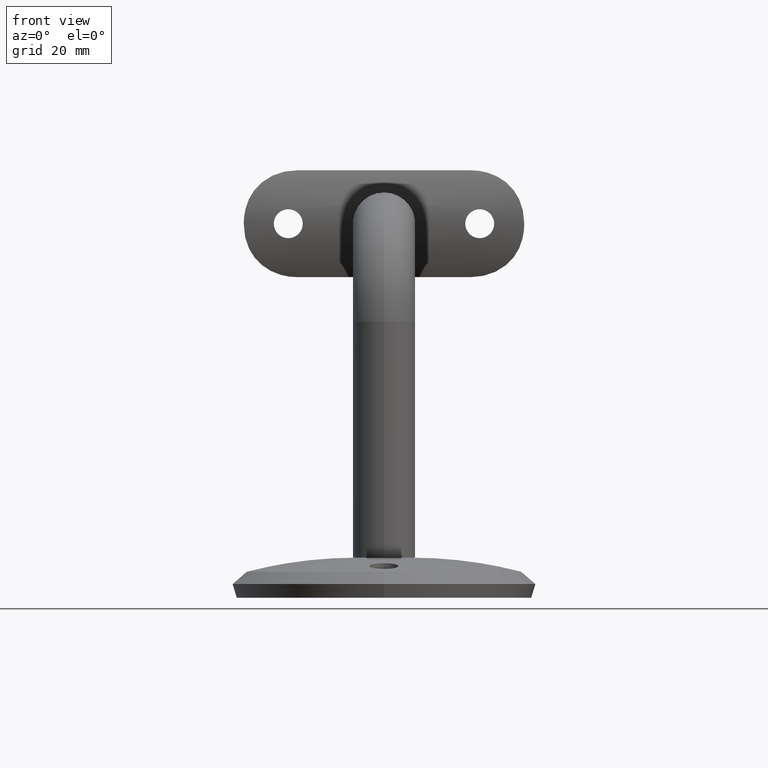
[diagram: clean part render]
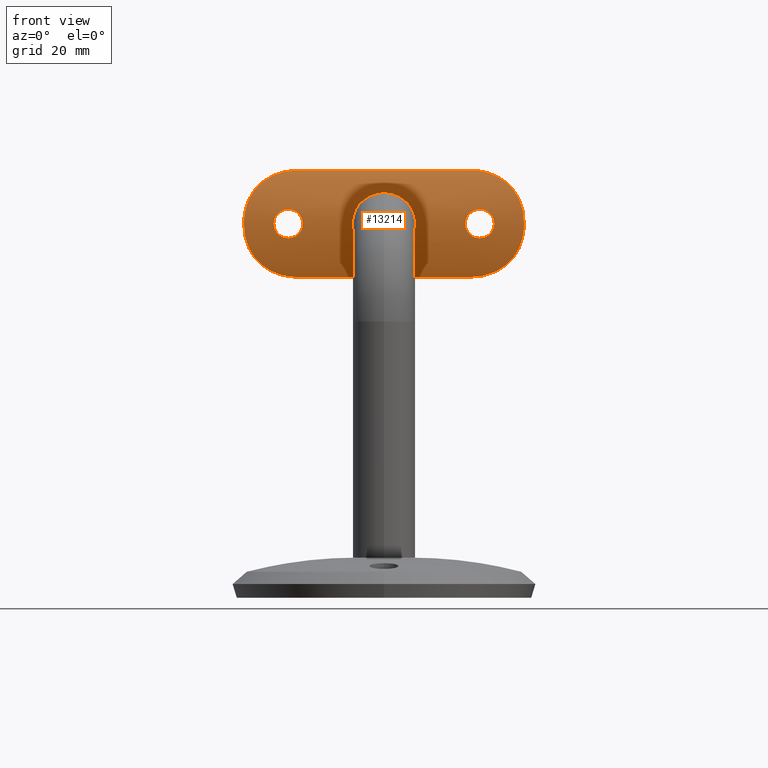
[diagram: same view with one face highlighted and labeled with its STEP entity id]
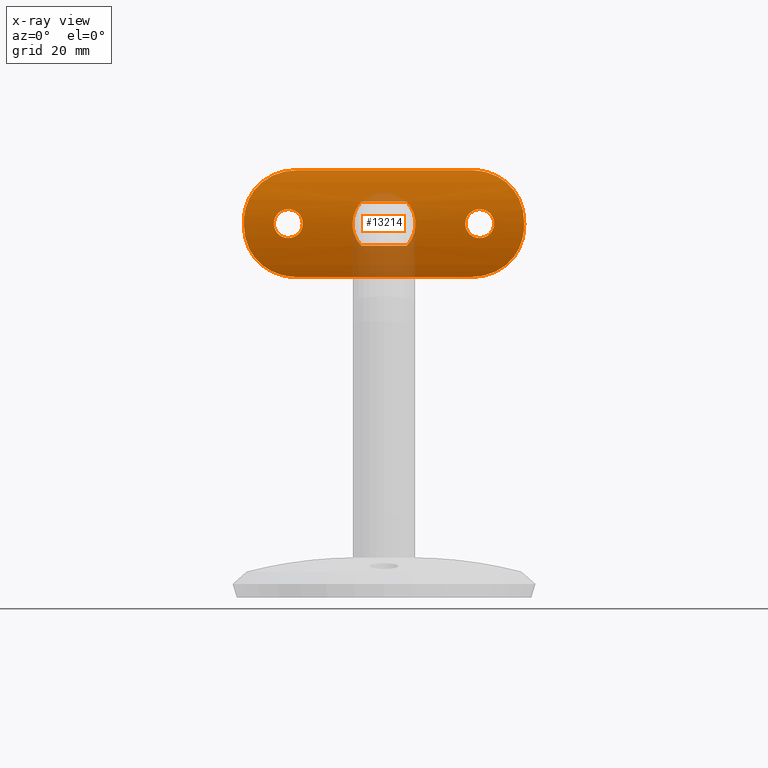
[diagram: x-ray of the same camera — body ghosted, the highlighted face saturated]
A machine part, front view. The second image highlights one B-rep face of the part: STEP entity #13214.
The next image is the same camera in x-ray: the body ghosted, the highlighted face saturated — about 10% of this face is hidden behind the body in this view.
In plain terms, the highlighted cylindrical surface (partial cylindrical patch) has radius 24.9 mm, axis along (-1, -0, -0).
Its self-contained STEP definition (entity closure, byte-faithful):
#1 = CARTESIAN_POINT ( 'NONE',  ( 4.636296391438902376, -3.266859031703641669, 5.396854037863801246 ) ) ;
#107 = CARTESIAN_POINT ( 'NONE',  ( 2.820318138835625543, -3.540050219768343442, -23.12909999587939325 ) ) ;
#114 = CARTESIAN_POINT ( 'NONE',  ( 2.256384447253243941, -3.598537256065256873, 6.735834185619443026 ) ) ;
#133 = CARTESIAN_POINT ( 'NONE',  ( 7.494247687663852631, -2.555515036344155888, 29.19387504587052717 ) ) ;
#176 = CARTESIAN_POINT ( 'NONE',  ( -9.659094786861150084, -1.751713507356720712, -26.96718664785969111 ) ) ;
#179 = CARTESIAN_POINT ( 'NONE',  ( 1.613102312184482745, -3.660295573399624303, -31.43708710865749367 ) ) ;
#180 = CARTESIAN_POINT ( 'NONE',  ( 3.980101584972723397E-16, -3.699999999999971312, -18.25000000000000000 ) ) ;
#182 = CARTESIAN_POINT ( 'NONE',  ( 11.92848342012841734, -0.6574244313320037891, 21.11270732962849905 ) ) ;
#197 = VERTEX_POINT ( 'NONE', #11163 ) ;
#205 = CARTESIAN_POINT ( 'NONE',  ( 0.000000000000000000, -3.699999999999994849, -24.75000000000000000 ) ) ;
#292 = CARTESIAN_POINT ( 'NONE',  ( -5.461449533831196135, -3.105332391508218493, -30.40257824629768280 ) ) ;
#307 = CARTESIAN_POINT ( 'NONE',  ( 8.913816326006870128, -2.051629287276899305, 27.87356755031019517 ) ) ;
#351 = CARTESIAN_POINT ( 'NONE',  ( -0.4232112014913631537, -3.697288328665047086, -18.27057670183493698 ) ) ;
#369 = EDGE_CURVE ( 'NONE', #5914, #5116, #16351, .T. ) ;
#437 = CARTESIAN_POINT ( 'NONE',  ( 0.8420467231033953448, -3.686626758976840001, 24.64616809647208839 ) ) ;
#440 = VERTEX_POINT ( 'NONE', #14640 ) ;
#496 = CARTESIAN_POINT ( 'NONE',  ( 1.981835697622209125, -3.621637099023646833, 24.08455317125302386 ) ) ;
#517 = CARTESIAN_POINT ( 'NONE',  ( -0.8429508884399495861, -3.686613020686982267, -18.35393637072016304 ) ) ;
#547 = CARTESIAN_POINT ( 'NONE',  ( 2.921291525389161592, -3.528178234305193506, 20.05987320755157910 ) ) ;
#567 = CARTESIAN_POINT ( 'NONE',  ( -2.919465209628760771, -3.528394687198957769, -20.05618315748919400 ) ) ;
#582 = EDGE_CURVE ( 'NONE', #5914, #1958, #16421, .T. ) ;
#594 = CARTESIAN_POINT ( 'NONE',  ( 2.582737021104773323, -3.565979664869300958, 23.48434641144994472 ) ) ;
#649 = CARTESIAN_POINT ( 'NONE',  ( 0.2122259090402193182, -3.699999999999970424, 18.25000000000000000 ) ) ;
#750 = CARTESIAN_POINT ( 'NONE',  ( -4.280658070604808074, -3.332362613302150667, -5.683006983233182652 ) ) ;
#776 = DIRECTION ( 'NONE',  ( -2.169367489357782465E-30, -8.474091755303465534E-33, -1.000000000000000000 ) ) ;
#834 = CARTESIAN_POINT ( 'NONE',  ( 11.99999999999998224, -0.6176534026920421638, 19.50000000000000000 ) ) ;
#885 = EDGE_LOOP ( 'NONE', ( #7508, #13137, #11078, #3647, #9639, #15859 ) ) ;
#916 = EDGE_CURVE ( 'NONE', #12010, #12425, #3341, .T. ) ;
#989 = B_SPLINE_CURVE_WITH_KNOTS ( 'NONE', 3,
 ( #4964, #10164, #13937, #2488, #5347, #6234, #15248, #11799, #13999, #10503, #176, #9206, #1142, #5290, #1540, #7994, #292, #4113, #3725, #2772, #11453, #10446, #3781, #7872 ),
 .UNSPECIFIED., .F., .F.,
 ( 4, 2, 2, 2, 2, 2, 2, 2, 2, 2, 2, 4 ),
 ( 3.476216610979979395E-18, 0.002405426272235862330, 0.003608139408353791978, 0.004810852544471722059, 0.007216278816707583955, 0.008418991952825518807, 0.009621705088943452791, 0.01202713136117931729, 0.01443255763341518352, 0.01563527076953311751, 0.01683798390565105149, 0.01924341017788691599 ),
 .UNSPECIFIED. ) ;
#1142 = CARTESIAN_POINT ( 'NONE',  ( -8.913816326006866575, -2.051629287276900193, -27.87356755031018452 ) ) ;
#1178 = CARTESIAN_POINT ( 'NONE',  ( -2.583679710951852559, -3.565877140410982804, 19.51704738153346952 ) ) ;
#1183 = CARTESIAN_POINT ( 'NONE',  ( -7.465386431756492414, -2.556697687672635944, 29.18815436188813095 ) ) ;
#1228 = CARTESIAN_POINT ( 'NONE',  ( -0.4232112014913322340, -3.697288328665049306, 18.27057670183493343 ) ) ;
#1303 = CARTESIAN_POINT ( 'NONE',  ( -12.00000000000001066, -0.6176534026920421638, 19.50000000000000000 ) ) ;
#1343 = CARTESIAN_POINT ( 'NONE',  ( -2.586209114153505073, -3.565612576627268382, 23.47967563857593731 ) ) ;
#1362 = CARTESIAN_POINT ( 'NONE',  ( -3.111721533360752190, -3.505646597793705688, 6.385896125220559938 ) ) ;
#1406 = CARTESIAN_POINT ( 'NONE',  ( -12.00000000000001066, -0.6176534026920421638, 19.50000000000000000 ) ) ;
#1470 = CARTESIAN_POINT ( 'NONE',  ( -4.282078825921497689, -3.332048076451970875, 5.681556398469049363 ) ) ;
#1520 = CARTESIAN_POINT ( 'NONE',  ( 3.229256190507495461, -3.489748422613191625, -21.92447517388455580 ) ) ;
#1540 = CARTESIAN_POINT ( 'NONE',  ( -7.494247687663852631, -2.555515036344158553, -29.19387504587052717 ) ) ;
#1573 = CARTESIAN_POINT ( 'NONE',  ( 0.4278139272984491925, -3.697198004263605231, -18.27127385403586146 ) ) ;
#1638 = DIRECTION ( 'NONE',  ( 2.169367489357782465E-30, 8.474091755303465534E-33, 1.000000000000000000 ) ) ;
#1666 = EDGE_CURVE ( 'NONE', #10897, #11133, #9762, .T. ) ;
#1735 = CARTESIAN_POINT ( 'NONE',  ( 3.980101584964834788E-16, -3.699999999999969535, 18.25000000000000000 ) ) ;
#1755 = CARTESIAN_POINT ( 'NONE',  ( -2.819524886703622890, -3.540136434465648740, -19.86972966992389544 ) ) ;
#1786 = CARTESIAN_POINT ( 'NONE',  ( 2.148852459624744693, -3.607560168819054169, 23.94740334920767921 ) ) ;
#1805 = CARTESIAN_POINT ( 'NONE',  ( -1.439045858798900790, -3.659153063118064875, -18.57827880898149431 ) ) ;
#1918 = CARTESIAN_POINT ( 'NONE',  ( 4.964876634922524623, -3.199999999999994404, -5.075431016179847710 ) ) ;
#1938 = CARTESIAN_POINT ( 'NONE',  ( 0.8447782825700470566, -3.686539391269251009, 18.35451960182217590 ) ) ;
#1958 = VERTEX_POINT ( 'NONE', #8658 ) ;
#2189 = CARTESIAN_POINT ( 'NONE',  ( 3.712115778710237013, -3.422492633365230574, -6.056552769143643822 ) ) ;
#2416 = CARTESIAN_POINT ( 'NONE',  ( 0.000000000000000000, -3.699999999999994849, 31.50000000000000000 ) ) ;
#2431 = CARTESIAN_POINT ( 'NONE',  ( -1.387778780781445676E-14, -3.700000000000009059, -31.50000000000000000 ) ) ;
#2469 = CARTESIAN_POINT ( 'NONE',  ( -3.249848216891571440, -3.487010483052731757, 21.28285409738497691 ) ) ;
#2478 = CARTESIAN_POINT ( 'NONE',  ( -8.074259893479320382, -2.356718930519072774, 28.69397140321249040 ) ) ;
#2488 = CARTESIAN_POINT ( 'NONE',  ( -11.71658496996890797, -0.7713009744624486075, -22.29178284133484311 ) ) ;
#2530 = CARTESIAN_POINT ( 'NONE',  ( -1.983184028264869392, -3.621535935841015963, 18.91638916660368963 ) ) ;
#2599 = CARTESIAN_POINT ( 'NONE',  ( 3.704398101367905038, -3.423671542610215557, 6.061365502583007547 ) ) ;
#2645 = CARTESIAN_POINT ( 'NONE',  ( 1.442102780649871185, -3.658985263850927705, -24.42031052337756947 ) ) ;
#2713 = CARTESIAN_POINT ( 'NONE',  ( 1.590617300758560670, -3.650178105100922554, 6.923377972446076889 ) ) ;
#2754 = CARTESIAN_POINT ( 'NONE',  ( 2.582737021104838604, -3.565979664869294297, -23.48434641144987012 ) ) ;
#2759 = VECTOR ( 'NONE', #776, 1000.000000000000000 ) ;
#2763 = CARTESIAN_POINT ( 'NONE',  ( 0.9113910570558707569, -3.687447184312848236, 7.056363803575782079 ) ) ;
#2765 = CARTESIAN_POINT ( 'NONE',  ( 0.000000000000000000, 21.20000000000002416, 31.49999999999969447 ) ) ;
#2772 = CARTESIAN_POINT ( 'NONE',  ( -3.198330643184873701, -3.496848918690158570, -31.15048156429586257 ) ) ;
#2775 = CARTESIAN_POINT ( 'NONE',  ( 6.156121038829930114, -2.936724213265689887, -30.05584034722584263 ) ) ;
#2789 = EDGE_CURVE ( 'NONE', #11133, #11445, #5149, .T. ) ;
#2826 = CARTESIAN_POINT ( 'NONE',  ( 12.00000000000000888, -0.6176534026920420528, -20.31329885972720817 ) ) ;
#2833 = CARTESIAN_POINT ( 'NONE',  ( 0.000000000000000000, -3.699999999999994849, 31.50000000000000000 ) ) ;
#2881 = CARTESIAN_POINT ( 'NONE',  ( -2.921499772798233252, -3.528153329608621380, -22.93967651103432459 ) ) ;
#2985 = CARTESIAN_POINT ( 'NONE',  ( 3.084324042621237272, -3.508372835214868868, -20.45364702191521644 ) ) ;
#3009 = ORIENTED_EDGE ( 'NONE', *, *, #2789, .T. ) ;
#3090 = B_SPLINE_CURVE_WITH_KNOTS ( 'NONE', 3,
 ( #10530, #5974, #8397, #14811, #12312, #3289, #5865, #14858, #12424, #7148, #8440, #750, #4629, #13617 ),
 .UNSPECIFIED., .F., .F.,
 ( 4, 2, 2, 2, 2, 2, 4 ),
 ( 0.005499627587204902746, 0.006872830783217639961, 0.007559432381224008568, 0.008246033979230377176, 0.008932635577236745783, 0.009619237175243112656, 0.01099244037125584814 ),
 .UNSPECIFIED. ) ;
#3108 = CARTESIAN_POINT ( 'NONE',  ( -3.084351378400128851, -3.508369120394314589, -22.54623417715408706 ) ) ;
#3168 = LINE ( 'NONE', #6050, #2759 ) ;
#3190 = CARTESIAN_POINT ( 'NONE',  ( 3.083248104138752055, -3.508505602359200726, 22.54922712429813814 ) ) ;
#3277 = B_SPLINE_CURVE_WITH_KNOTS ( 'NONE', 3,
 ( #9856, #6112, #15011, #2189, #12452, #3384, #14949, #13646, #7238, #11035, #8533, #13595 ),
 .UNSPECIFIED., .F., .F.,
 ( 4, 2, 2, 2, 2, 4 ),
 ( 1.226634733346703008E-18, 0.001374906896801228072, 0.002062360345201840264, 0.002749813793602452674, 0.004124720690403677927, 0.005499627587204902746 ),
 .UNSPECIFIED. ) ;
#3289 = CARTESIAN_POINT ( 'NONE',  ( -2.258265762077046102, -3.598364552420614704, -6.735198545714673024 ) ) ;
#3341 = B_SPLINE_CURVE_WITH_KNOTS ( 'NONE', 3,
 ( #10541, #14541, #15668, #437, #11882, #4324, #6889, #496, #1786, #13411, #594, #15989, #4526, #3190, #8442, #6996, #14760, #10847, #4427, #7039, #12209, #547, #16038, #4578, #10806, #15936, #13507, #8345, #5660, #7152, #1938, #5868, #649, #12151 ),
 .UNSPECIFIED., .F., .F.,
 ( 4, 2, 2, 2, 2, 2, 2, 2, 2, 2, 2, 2, 2, 2, 2, 2, 4 ),
 ( 0.000000000000000000, 0.0006357393811928030913, 0.001271478762385606616, 0.001907218143578410033, 0.002542957524771213666, 0.003178696905964016432, 0.003814436287156820066, 0.004450175668349622832, 0.005085915049542426465, 0.005721654430735229231, 0.006357393811928031997, 0.006993133193120835631, 0.007628872574313638397, 0.008264611955506442897, 0.008900351336699245663, 0.009536090717892050164, 0.01017183009908485466 ),
 .UNSPECIFIED. ) ;
#3384 = CARTESIAN_POINT ( 'NONE',  ( 3.110441035698505718, -3.505809087705372917, -6.386525233789827283 ) ) ;
#3533 = CARTESIAN_POINT ( 'NONE',  ( -4.964876634922524623, -3.199999999999994404, -5.075431016179843269 ) ) ;
#3647 = ORIENTED_EDGE ( 'NONE', *, *, #582, .F. ) ;
#3725 = CARTESIAN_POINT ( 'NONE',  ( -3.974160166930931659, -3.383932077341129219, -30.94271765376580774 ) ) ;
#3729 = CARTESIAN_POINT ( 'NONE',  ( 3.959980470126887031, -3.386209395477729700, -30.94697538539420734 ) ) ;
#3763 = CARTESIAN_POINT ( 'NONE',  ( -1.443090599177613731, -3.658917177029042289, 24.41972029213761530 ) ) ;
#3770 = CARTESIAN_POINT ( 'NONE',  ( -9.651496139240766325, -1.754897554413263228, 26.97737785628718754 ) ) ;
#3781 = CARTESIAN_POINT ( 'NONE',  ( -0.8129078222397787545, -3.700000000000009059, -31.50000000000000000 ) ) ;
#3821 = CARTESIAN_POINT ( 'NONE',  ( -3.145628655883432323, -3.500541877894284060, 20.65596617013613923 ) ) ;
#3843 = EDGE_CURVE ( 'NONE', #5116, #13299, #10641, .T. ) ;
#3951 = CARTESIAN_POINT ( 'NONE',  ( -2.264874394996045037, -3.600457940495219056, 6.744685369997289293 ) ) ;
#3999 = CARTESIAN_POINT ( 'NONE',  ( 3.100854879138932763, -3.507010798058747270, 6.391162737197334742 ) ) ;
#4113 = CARTESIAN_POINT ( 'NONE',  ( -4.352835420540754896, -3.319471389484637935, -30.82115928304210684 ) ) ;
#4117 = CARTESIAN_POINT ( 'NONE',  ( 10.86337671054184817, -1.207519595627818632, -24.95273175522527964 ) ) ;
#4264 = CARTESIAN_POINT ( 'NONE',  ( 2.146750992437098660, -3.607753381938928694, -19.05052876677883589 ) ) ;
#4290 = CARTESIAN_POINT ( 'NONE',  ( 8.362564540343095487, -2.255537001843989753, -28.43211677885593858 ) ) ;
#4324 = CARTESIAN_POINT ( 'NONE',  ( 1.442102780649961780, -3.658985263850918823, 24.42031052337751973 ) ) ;
#4346 = CARTESIAN_POINT ( 'NONE',  ( -2.821821168969953497, -3.539874073407938582, -23.12632054234545365 ) ) ;
#4425 = VERTEX_POINT ( 'NONE', #12617 ) ;
#4427 = CARTESIAN_POINT ( 'NONE',  ( 3.228883512651747001, -3.489796806255358153, 21.07337049124385686 ) ) ;
#4526 = CARTESIAN_POINT ( 'NONE',  ( 2.921124191385680913, -3.528196485631387436, 22.94025341122300077 ) ) ;
#4562 = DIRECTION ( 'NONE',  ( -2.169367489357782465E-30, -8.474091755303465534E-33, -1.000000000000000000 ) ) ;
#4578 = CARTESIAN_POINT ( 'NONE',  ( 2.584365611345395664, -3.565804050768294431, 19.51799543005816417 ) ) ;
#4629 = CARTESIAN_POINT ( 'NONE',  ( -4.636500095948909106, -3.266817582205205461, -5.396654770499319298 ) ) ;
#4675 = B_SPLINE_CURVE_WITH_KNOTS ( 'NONE', 3,
 ( #2431, #11351, #179, #12998, #11409, #3729, #6292, #10450, #2775, #11744, #8711, #9325, #4290, #7997, #9210, #10630, #15694, #6864, #4117, #15810, #13100, #5407, #2826, #9377 ),
 .UNSPECIFIED., .F., .F.,
 ( 4, 2, 2, 2, 2, 2, 2, 2, 2, 2, 2, 4 ),
 ( 1.077696660413038744E-18, 0.002406420888280979414, 0.003609631332421468688, 0.004812841776561957961, 0.007219262664842938243, 0.008422473108983431420, 0.009625683553123926331, 0.01082889399726441951, 0.01203210444140491268, 0.01443852532968590424, 0.01684494621796689406, 0.01925136710624788736 ),
 .UNSPECIFIED. ) ;
#4681 = EDGE_CURVE ( 'NONE', #15535, #440, #15705, .T. ) ;
#4914 = EDGE_CURVE ( 'NONE', #12425, #12010, #14302, .T. ) ;
#4964 = CARTESIAN_POINT ( 'NONE',  ( -11.99999999999998224, -0.6176534026920560416, -19.50000000000000355 ) ) ;
#4997 = CARTESIAN_POINT ( 'NONE',  ( -3.082957173500506354, -3.508544189864446050, 20.44963851398086518 ) ) ;
#5002 = CARTESIAN_POINT ( 'NONE',  ( -3.185422266228735477, -3.498506488204460751, 31.15346151089249105 ) ) ;
#5050 = CARTESIAN_POINT ( 'NONE',  ( -2.150086282832535556, -3.607452471063076427, 23.94631227737812651 ) ) ;
#5104 = CARTESIAN_POINT ( 'NONE',  ( -2.821821168969941951, -3.539874073407943023, 23.12632054234545720 ) ) ;
#5116 = VERTEX_POINT ( 'NONE', #12485 ) ;
#5149 = LINE ( 'NONE', #6258, #9358 ) ;
#5241 = ORIENTED_EDGE ( 'NONE', *, *, #15047, .T. ) ;
#5247 = CARTESIAN_POINT ( 'NONE',  ( 11.28972141810763929, -0.9940804612480595992, 23.83666306912913768 ) ) ;
#5290 = CARTESIAN_POINT ( 'NONE',  ( -8.096501375618348817, -2.354069913744669229, -28.70234642595245234 ) ) ;
#5328 = CARTESIAN_POINT ( 'NONE',  ( 3.083248104138704981, -3.508505602359203834, -22.54922712429826959 ) ) ;
#5340 = CARTESIAN_POINT ( 'NONE',  ( 2.471878148250398866, -3.577911789568007261, 6.659715758080829495 ) ) ;
#5347 = CARTESIAN_POINT ( 'NONE',  ( -11.62834804759313556, -0.8183103573893919513, -22.68144421163976432 ) ) ;
#5407 = CARTESIAN_POINT ( 'NONE',  ( 11.92848259060794014, -0.6574309275929257623, -21.11410712426871328 ) ) ;
#5453 = CARTESIAN_POINT ( 'NONE',  ( -0.8474384682299959115, -3.686461918805227000, -24.64487241752244984 ) ) ;
#5521 = CARTESIAN_POINT ( 'NONE',  ( -2.449262616600729636, -3.579703020064631147, -23.64672481166024554 ) ) ;
#5629 = CARTESIAN_POINT ( 'NONE',  ( -2.586209114153444677, -3.565612576627271491, -23.47967563857602613 ) ) ;
#5660 = CARTESIAN_POINT ( 'NONE',  ( 1.440859961367720654, -3.659057170068559905, 18.57908025749506820 ) ) ;
#5789 = EDGE_CURVE ( 'NONE', #7842, #10897, #15967, .T. ) ;
#5865 = CARTESIAN_POINT ( 'NONE',  ( -2.473601289892182198, -3.577738523372020030, -6.659071046019722218 ) ) ;
#5868 = CARTESIAN_POINT ( 'NONE',  ( 0.4278139272984166075, -3.697198004263604787, 18.27127385403586146 ) ) ;
#5914 = VERTEX_POINT ( 'NONE', #834 ) ;
#5974 = CARTESIAN_POINT ( 'NONE',  ( -0.4586185383962270712, -3.699999999999969980, -7.100000000000004086 ) ) ;
#6050 = CARTESIAN_POINT ( 'NONE',  ( -11.99999999999999645, -0.6176534026920421638, 31.50000000000000000 ) ) ;
#6068 = B_SPLINE_CURVE_WITH_KNOTS ( 'NONE', 3,
 ( #205, #7687, #7849, #9191, #10319, #2645, #11612, #8974, #6607, #6503, #2754, #107, #11717, #5328, #9075, #1520, #9458, #13075, #15726, #8080, #2985, #14439, #11947, #14547, #8197, #4264, #10762, #10713, #10657, #15788, #13250, #1573, #15672, #10547 ),
 .UNSPECIFIED., .F., .F.,
 ( 4, 2, 2, 2, 2, 2, 2, 2, 2, 2, 2, 2, 2, 2, 2, 2, 4 ),
 ( 8.612190294667283965E-19, 0.0006357393811927677463, 0.001271478762385534625, 0.001907218143578301179, 0.002542957524771068383, 0.003178696905963835154, 0.003814436287156601491, 0.004450175668349368695, 0.005085915049542135899, 0.005721654430734902236, 0.006357393811927669440, 0.006993133193120436644, 0.007628872574313202114, 0.008264611955505969318, 0.008900351336698737389, 0.009536090717891505461, 0.01017183009908427180 ),
 .UNSPECIFIED. ) ;
#6112 = CARTESIAN_POINT ( 'NONE',  ( 4.636128183256396973, -3.266893258460820348, -5.397018582091170913 ) ) ;
#6234 = CARTESIAN_POINT ( 'NONE',  ( -11.41507547166431635, -0.9296299401163019560, -23.45386468381838796 ) ) ;
#6258 = CARTESIAN_POINT ( 'NONE',  ( 4.964876634922524623, -3.199999999999994404, 31.49999999999999289 ) ) ;
#6274 = CARTESIAN_POINT ( 'NONE',  ( -1.047902027870929897, -3.678710684825339694, 18.41629945653652101 ) ) ;
#6281 = CARTESIAN_POINT ( 'NONE',  ( -3.959980470126880370, -3.386209395477729256, 30.94697538539420734 ) ) ;
#6292 = CARTESIAN_POINT ( 'NONE',  ( 4.343585444218851954, -3.321130880666876894, -30.82433790244265381 ) ) ;
#6334 = CARTESIAN_POINT ( 'NONE',  ( -2.449262616600864195, -3.579703020064620045, 23.64672481166009987 ) ) ;
#6338 = CARTESIAN_POINT ( 'NONE',  ( -10.51395294504078848, -1.376102020913408053, 25.65610659191668930 ) ) ;
#6455 = CARTESIAN_POINT ( 'NONE',  ( -2.901699150288104878, -3.531270379057796838, 6.484038188702959005 ) ) ;
#6503 = CARTESIAN_POINT ( 'NONE',  ( 2.448290363575797990, -3.579799892622920421, -23.64784178713661333 ) ) ;
#6533 = CARTESIAN_POINT ( 'NONE',  ( 11.62834804759315155, -0.8183103573893861782, 22.68144421163976787 ) ) ;
#6585 = CARTESIAN_POINT ( 'NONE',  ( 11.99999999999998579, -0.6176534026920420528, 20.31330633155848275 ) ) ;
#6607 = CARTESIAN_POINT ( 'NONE',  ( 2.148852459624673639, -3.607560168819061719, -23.94740334920774671 ) ) ;
#6637 = CARTESIAN_POINT ( 'NONE',  ( 10.86543210599209885, -1.206527040695207997, 24.94850832163289667 ) ) ;
#6697 = CARTESIAN_POINT ( 'NONE',  ( 11.41507547166432524, -0.9296299401162954057, 23.45386468381837375 ) ) ;
#6856 = CARTESIAN_POINT ( 'NONE',  ( -1.628227239447606056, -3.647344750715974637, -18.67919517067760538 ) ) ;
#6862 = EDGE_CURVE ( 'NONE', #14705, #1958, #4675, .T. ) ;
#6864 = CARTESIAN_POINT ( 'NONE',  ( 10.51395294504077960, -1.376102020913409163, -25.65610659191669995 ) ) ;
#6889 = CARTESIAN_POINT ( 'NONE',  ( 1.628699641122160147, -3.647307268334033736, 24.32044771382351556 ) ) ;
#6968 = CARTESIAN_POINT ( 'NONE',  ( -1.631627379172323922, -3.647122264414902837, -24.31886029199421273 ) ) ;
#6996 = CARTESIAN_POINT ( 'NONE',  ( 3.229256190507529212, -3.489748422613189849, 21.92447517388427869 ) ) ;
#7039 = CARTESIAN_POINT ( 'NONE',  ( 3.145785620554937712, -3.500522016790684532, 20.65635652937654498 ) ) ;
#7100 = CARTESIAN_POINT ( 'NONE',  ( -4.964876634922537946, -3.199999999999994404, 5.075431016179841492 ) ) ;
#7148 = CARTESIAN_POINT ( 'NONE',  ( -3.506564222652059026, -3.452700319270824547, -6.177880390645239750 ) ) ;
#7152 = CARTESIAN_POINT ( 'NONE',  ( 1.047393586680330779, -3.678741276189808840, 18.41603887102827741 ) ) ;
#7155 = EDGE_CURVE ( 'NONE', #11445, #4425, #3277, .T. ) ;
#7164 = ORIENTED_EDGE ( 'NONE', *, *, #4681, .F. ) ;
#7238 = CARTESIAN_POINT ( 'NONE',  ( 1.825648068936826629, -3.637070978649130204, -6.876581450474894552 ) ) ;
#7435 = DIRECTION ( 'NONE',  ( -2.169367489357782465E-30, -8.474091755303465534E-33, -1.000000000000000000 ) ) ;
#7508 = ORIENTED_EDGE ( 'NONE', *, *, #10421, .T. ) ;
#7517 = FACE_BOUND ( 'NONE', #14575, .T. ) ;
#7572 = CARTESIAN_POINT ( 'NONE',  ( -3.084351378400044030, -3.508369120394319474, 22.54623417715431799 ) ) ;
#7578 = CARTESIAN_POINT ( 'NONE',  ( -6.156121038829923897, -2.936724213265691663, 30.05584034722584263 ) ) ;
#7585 = EDGE_CURVE ( 'NONE', #440, #15535, #6068, .T. ) ;
#7634 = CARTESIAN_POINT ( 'NONE',  ( -10.86337671054185172, -1.207519595627814191, 24.95273175522526898 ) ) ;
#7642 = CARTESIAN_POINT ( 'NONE',  ( -1.827830933494216437, -3.636904553612686275, 6.875981570658941777 ) ) ;
#7681 = CARTESIAN_POINT ( 'NONE',  ( -3.229201240444566245, -3.489754643205440487, 21.92386930829948000 ) ) ;
#7687 = CARTESIAN_POINT ( 'NONE',  ( 0.2149818604170241343, -3.700000000000009059, -24.75000000000001066 ) ) ;
#7699 = CARTESIAN_POINT ( 'NONE',  ( 3.505576954194433270, -3.452841900582014123, 6.178445786202252599 ) ) ;
#7755 = CARTESIAN_POINT ( 'NONE',  ( 4.280216917462786874, -3.332443931792659075, 5.683362678621757702 ) ) ;
#7757 = DIRECTION ( 'NONE',  ( -2.169367489357782465E-30, -8.474091755303465534E-33, -1.000000000000000000 ) ) ;
#7777 = CARTESIAN_POINT ( 'NONE',  ( 10.51663599609497624, -1.374778303228652909, 25.65040292986302362 ) ) ;
#7802 = CARTESIAN_POINT ( 'NONE',  ( -11.42861343239433225, -0.9245719279827769865, 23.47385143687692022 ) ) ;
#7842 = VERTEX_POINT ( 'NONE', #3533 ) ;
#7849 = CARTESIAN_POINT ( 'NONE',  ( 0.4263252820595022086, -3.697218336159324270, -24.72887954699843505 ) ) ;
#7872 = CARTESIAN_POINT ( 'NONE',  ( -1.387778780781445676E-14, -3.700000000000009059, -31.50000000000000000 ) ) ;
#7943 = CARTESIAN_POINT ( 'NONE',  ( 8.096501375618352370, -2.354069913744669229, 28.70234642595245589 ) ) ;
#7994 = CARTESIAN_POINT ( 'NONE',  ( -6.164181800682560386, -2.934852511962080968, -30.05211743802890112 ) ) ;
#7997 = CARTESIAN_POINT ( 'NONE',  ( 8.908510052025789605, -2.053669611251289773, -27.87937364185426503 ) ) ;
#8002 = CARTESIAN_POINT ( 'NONE',  ( 4.352835420540755784, -3.319471389484635715, 30.82115928304210328 ) ) ;
#8080 = CARTESIAN_POINT ( 'NONE',  ( 3.145785620555029194, -3.500522016790673430, -20.65635652937688604 ) ) ;
#8096 = CARTESIAN_POINT ( 'NONE',  ( 0.000000000000000000, -3.699999999999994849, -24.75000000000000000 ) ) ;
#8110 = CARTESIAN_POINT ( 'NONE',  ( 11.99999999999999645, -0.6176534026914454190, 31.50000000000000000 ) ) ;
#8159 = CARTESIAN_POINT ( 'NONE',  ( -1.986735340249689452, -3.621252494889344309, -24.08090370569096450 ) ) ;
#8197 = CARTESIAN_POINT ( 'NONE',  ( 2.449870133762373392, -3.579655042198047976, -19.35370424367776465 ) ) ;
#8252 = CARTESIAN_POINT ( 'NONE',  ( -0.2121748390877163659, -3.699999999999969980, -18.25000000000000000 ) ) ;
#8345 = CARTESIAN_POINT ( 'NONE',  ( 1.630997491512056197, -3.647151806679350905, 18.68093415040934957 ) ) ;
#8397 = CARTESIAN_POINT ( 'NONE',  ( -0.9142097955992272151, -3.687338515416161311, -7.055981841108256880 ) ) ;
#8440 = CARTESIAN_POINT ( 'NONE',  ( -3.705248419110434899, -3.423542522952972789, -6.060840257332934300 ) ) ;
#8442 = CARTESIAN_POINT ( 'NONE',  ( 3.145741730984330076, -3.500527963543722532, 22.34414671658367979 ) ) ;
#8513 = FACE_OUTER_BOUND ( 'NONE', #885, .T. ) ;
#8533 = CARTESIAN_POINT ( 'NONE',  ( 0.4591875355903415334, -3.699999999999969091, -7.099999999999999645 ) ) ;
#8658 = CARTESIAN_POINT ( 'NONE',  ( 12.00000000000001066, -0.6176534026920421638, -19.50000000000000355 ) ) ;
#8711 = CARTESIAN_POINT ( 'NONE',  ( 7.465386431756481755, -2.556697687672642161, -29.18815436188814161 ) ) ;
#8850 = CARTESIAN_POINT ( 'NONE',  ( -1.439045858799198996, -3.659153063118048443, 18.57827880898163286 ) ) ;
#8858 = CARTESIAN_POINT ( 'NONE',  ( -8.908510052025796710, -2.053669611251294214, 27.87937364185426148 ) ) ;
#8912 = CARTESIAN_POINT ( 'NONE',  ( -2.446447891969488531, -3.579982845335489383, 19.35005541743644741 ) ) ;
#8968 = CARTESIAN_POINT ( 'NONE',  ( -0.2121748390877013501, -3.699999999999969091, 18.24999999999999289 ) ) ;
#8974 = CARTESIAN_POINT ( 'NONE',  ( 1.981835697622097214, -3.621637099023656603, -24.08455317125309847 ) ) ;
#9030 = CARTESIAN_POINT ( 'NONE',  ( 2.894113515964095384, -3.532149142121172147, 6.487380250528087977 ) ) ;
#9045 = ORIENTED_EDGE ( 'NONE', *, *, #5789, .T. ) ;
#9048 = CARTESIAN_POINT ( 'NONE',  ( 3.974160166930935212, -3.383932077341130995, 30.94271765376581484 ) ) ;
#9075 = CARTESIAN_POINT ( 'NONE',  ( 3.145741730984266127, -3.500527963543728749, -22.34414671658392137 ) ) ;
#9104 = CARTESIAN_POINT ( 'NONE',  ( 5.461449533831193470, -3.105332391508215384, 30.40257824629770056 ) ) ;
#9144 = CARTESIAN_POINT ( 'NONE',  ( -3.516909975170977365, -3.451229765324073551, 6.172019479054712932 ) ) ;
#9191 = CARTESIAN_POINT ( 'NONE',  ( 0.8420467231033378352, -3.686626758976840446, -24.64616809647209905 ) ) ;
#9206 = CARTESIAN_POINT ( 'NONE',  ( -9.171811217397610960, -1.950748238831689241, -27.58196296880780807 ) ) ;
#9210 = CARTESIAN_POINT ( 'NONE',  ( 9.166149050193574510, -1.952978448765995356, -27.58848537800125555 ) ) ;
#9318 = CARTESIAN_POINT ( 'NONE',  ( -2.446447891969199429, -3.579982845335515584, -19.35005541743611701 ) ) ;
#9325 = CARTESIAN_POINT ( 'NONE',  ( 8.074259893479311501, -2.356718930519078548, -28.69397140321250816 ) ) ;
#9358 = VECTOR ( 'NONE', #7435, 1000.000000000000000 ) ;
#9377 = CARTESIAN_POINT ( 'NONE',  ( 12.00000000000001066, -0.6176534026920421638, -19.50000000000000355 ) ) ;
#9418 = CARTESIAN_POINT ( 'NONE',  ( -2.146685540702844008, -3.607748755027739396, -19.05069189656473583 ) ) ;
#9458 = CARTESIAN_POINT ( 'NONE',  ( 3.249921384642528110, -3.487000850647972605, -21.71342907918782927 ) ) ;
#9474 = CARTESIAN_POINT ( 'NONE',  ( -2.583679710951594100, -3.565877140411013890, -19.51704738153313912 ) ) ;
#9540 = ORIENTED_EDGE ( 'NONE', *, *, #7155, .T. ) ;
#9639 = ORIENTED_EDGE ( 'NONE', *, *, #369, .T. ) ;
#9678 = CARTESIAN_POINT ( 'NONE',  ( 0.000000000000000000, -3.699999999999994849, 24.74999999999999645 ) ) ;
#9762 = B_SPLINE_CURVE_WITH_KNOTS ( 'NONE', 3,
 ( #12815, #12925, #1470, #14229, #9144, #1362, #6455, #3951, #7642, #14105, #15469, #12862, #2763, #2713, #11730, #114, #5340, #9030, #3999, #7699, #2599, #7755, #1, #12985 ),
 .UNSPECIFIED., .F., .F.,
 ( 4, 2, 2, 2, 2, 2, 2, 2, 2, 2, 2, 4 ),
 ( 1.226634733346697230E-18, 0.001374055046406981234, 0.002061082569610472610, 0.002748110092813963769, 0.004122165139220946087, 0.005496220185627928405, 0.006870275232034909856, 0.007557302755238401448, 0.008244330278441892174, 0.008931357801645381164, 0.009618385324848870155, 0.01099244037125584640 ),
 .UNSPECIFIED. ) ;
#9856 = CARTESIAN_POINT ( 'NONE',  ( 4.964876634922524623, -3.199999999999994404, -5.075431016179847710 ) ) ;
#10005 = CARTESIAN_POINT ( 'NONE',  ( 4.964876634922524623, -3.199999999999994404, 5.075431016179845933 ) ) ;
#10087 = CARTESIAN_POINT ( 'NONE',  ( -1.613102312184480081, -3.660295573399625191, 31.43708710865748657 ) ) ;
#10148 = CARTESIAN_POINT ( 'NONE',  ( -2.146685540703187733, -3.607748755027713194, 19.05069189656503426 ) ) ;
#10153 = CARTESIAN_POINT ( 'NONE',  ( -9.166149050193586945, -1.952978448765992914, 27.58848537800125555 ) ) ;
#10164 = CARTESIAN_POINT ( 'NONE',  ( -11.99999999999998401, -0.6176534026920561526, -20.31330633155848631 ) ) ;
#10319 = CARTESIAN_POINT ( 'NONE',  ( 1.048596989939839075, -3.678690743907822913, -24.58355611844458011 ) ) ;
#10350 = CARTESIAN_POINT ( 'NONE',  ( 3.198330643184875921, -3.496848918690159014, 31.15048156429586612 ) ) ;
#10405 = CARTESIAN_POINT ( 'NONE',  ( 11.99999999999998224, -0.6176534026920421638, 19.50000000000000000 ) ) ;
#10421 = EDGE_CURVE ( 'NONE', #13299, #197, #3168, .T. ) ;
#10446 = CARTESIAN_POINT ( 'NONE',  ( -1.615684953159065795, -3.660259510916446857, -31.43706210126418554 ) ) ;
#10450 = CARTESIAN_POINT ( 'NONE',  ( 5.455945028680448061, -3.106646016184960502, -30.40527435075044593 ) ) ;
#10503 = CARTESIAN_POINT ( 'NONE',  ( -9.887935222964605586, -1.653693335105069329, -26.64406495904744077 ) ) ;
#10512 = CARTESIAN_POINT ( 'NONE',  ( 9.171811217397623395, -1.950748238831687464, 27.58196296880781517 ) ) ;
#10530 = CARTESIAN_POINT ( 'NONE',  ( -1.912593264708343122E-23, -3.699999999999970424, -7.100000000000000533 ) ) ;
#10541 = CARTESIAN_POINT ( 'NONE',  ( 0.000000000000000000, -3.699999999999994849, 24.74999999999999645 ) ) ;
#10547 = CARTESIAN_POINT ( 'NONE',  ( 3.980101584972723397E-16, -3.699999999999971312, -18.25000000000000000 ) ) ;
#10562 = CARTESIAN_POINT ( 'NONE',  ( -3.146818807308083610, -3.500389802327926514, -22.33960540480581258 ) ) ;
#10567 = CARTESIAN_POINT ( 'NONE',  ( -4.964876634922524623, -3.199999999999994404, 31.49999999999999289 ) ) ;
#10579 = CARTESIAN_POINT ( 'NONE',  ( 2.803457390454647591, -3.544875466738524494, 31.23589290901536586 ) ) ;
#10614 = ORIENTED_EDGE ( 'NONE', *, *, #7585, .F. ) ;
#10630 = CARTESIAN_POINT ( 'NONE',  ( 9.651496139240748562, -1.754897554413265892, -26.97737785628718399 ) ) ;
#10641 = B_SPLINE_CURVE_WITH_KNOTS ( 'NONE', 3,
 ( #2416, #11213, #10087, #12516, #5002, #6281, #11441, #12752, #7578, #16566, #1183, #2478, #15346, #8858, #10153, #3770, #14043, #6338, #7634, #7802, #14093, #11718, #15625, #1406 ),
 .UNSPECIFIED., .F., .F.,
 ( 4, 2, 2, 2, 2, 2, 2, 2, 2, 2, 2, 4 ),
 ( 1.355197106528106284E-17, 0.002406420888280996762, 0.003609631332421490372, 0.004812841776561985717, 0.007219262664842970335, 0.008422473108983462645, 0.009625683553123952352, 0.01082889399726444206, 0.01203210444140493003, 0.01443852532968591812, 0.01684494621796690794, 0.01925136710624789430 ),
 .UNSPECIFIED. ) ;
#10657 = CARTESIAN_POINT ( 'NONE',  ( 1.440859961368198494, -3.659057170068529707, -18.57908025749529557 ) ) ;
#10673 = CARTESIAN_POINT ( 'NONE',  ( -3.145628655883344393, -3.500541877894292053, -20.65596617013580882 ) ) ;
#10713 = CARTESIAN_POINT ( 'NONE',  ( 1.630997491512486297, -3.647151806679321151, -18.68093415040960892 ) ) ;
#10728 = CARTESIAN_POINT ( 'NONE',  ( -3.249848216891553232, -3.487010483052735310, -21.28285409738464651 ) ) ;
#10762 = CARTESIAN_POINT ( 'NONE',  ( 1.982803818389875739, -3.621555042729815987, -18.91624805768329054 ) ) ;
#10777 = CARTESIAN_POINT ( 'NONE',  ( -3.250150178362276598, -3.486970730352488612, -21.71257844186911612 ) ) ;
#10806 = CARTESIAN_POINT ( 'NONE',  ( 2.449870133762093616, -3.579655042198075510, 19.35370424367745201 ) ) ;
#10847 = CARTESIAN_POINT ( 'NONE',  ( 3.250078171915088632, -3.486980209873619341, 21.28897191030376490 ) ) ;
#10864 = ORIENTED_EDGE ( 'NONE', *, *, #4914, .T. ) ;
#10897 = VERTEX_POINT ( 'NONE', #7100 ) ;
#11035 = CARTESIAN_POINT ( 'NONE',  ( 0.9257241312039573566, -3.686866425947929127, -7.054317695534759736 ) ) ;
#11078 = ORIENTED_EDGE ( 'NONE', *, *, #6862, .T. ) ;
#11133 = VERTEX_POINT ( 'NONE', #10005 ) ;
#11163 = CARTESIAN_POINT ( 'NONE',  ( -11.99999999999998224, -0.6176534026920560416, -19.50000000000000355 ) ) ;
#11213 = CARTESIAN_POINT ( 'NONE',  ( -0.8125589719993386861, -3.699999999999994404, 31.50000000000000000 ) ) ;
#11351 = CARTESIAN_POINT ( 'NONE',  ( 0.8125589719993474569, -3.699999999999994849, -31.50000000000000000 ) ) ;
#11409 = CARTESIAN_POINT ( 'NONE',  ( 3.185422266228743915, -3.498506488204462972, -31.15346151089249105 ) ) ;
#11436 = CARTESIAN_POINT ( 'NONE',  ( -3.146818807308016552, -3.500389802327936284, 22.33960540480606127 ) ) ;
#11441 = CARTESIAN_POINT ( 'NONE',  ( -4.343585444218806657, -3.321130880666885332, 30.82433790244266092 ) ) ;
#11445 = VERTEX_POINT ( 'NONE', #1918 ) ;
#11453 = CARTESIAN_POINT ( 'NONE',  ( -2.803457390454648479, -3.544875466738528491, -31.23589290901537296 ) ) ;
#11487 = CARTESIAN_POINT ( 'NONE',  ( -0.8429508884398887458, -3.686613020686984932, 18.35393637072015238 ) ) ;
#11554 = CARTESIAN_POINT ( 'NONE',  ( -2.819524886703819622, -3.540136434465622095, 19.86972966992424006 ) ) ;
#11607 = CARTESIAN_POINT ( 'NONE',  ( -1.052308858703521866, -3.678523263202710947, 24.58219453111724562 ) ) ;
#11612 = CARTESIAN_POINT ( 'NONE',  ( 1.628699641122062003, -3.647307268334039954, -24.32044771382356174 ) ) ;
#11689 = CARTESIAN_POINT ( 'NONE',  ( 9.659094786861157189, -1.751713507356716937, 26.96718664785968400 ) ) ;
#11695 = EDGE_LOOP ( 'NONE', ( #14164, #10864 ) ) ;
#11717 = CARTESIAN_POINT ( 'NONE',  ( 2.921124191385669810, -3.528196485631388768, -22.94025341122302919 ) ) ;
#11718 = CARTESIAN_POINT ( 'NONE',  ( -11.92848259060794547, -0.6574309275929245411, 21.11410712426871328 ) ) ;
#11726 = EDGE_CURVE ( 'NONE', #197, #14705, #989, .T. ) ;
#11730 = CARTESIAN_POINT ( 'NONE',  ( 1.816407414500718520, -3.634640825242664963, 6.867561215927579177 ) ) ;
#11744 = CARTESIAN_POINT ( 'NONE',  ( 7.144447545478610273, -2.655485527817210922, -29.42030368926517880 ) ) ;
#11799 = CARTESIAN_POINT ( 'NONE',  ( -10.86543210599208464, -1.206527040695213326, -24.94850832163289311 ) ) ;
#11845 = CARTESIAN_POINT ( 'NONE',  ( -3.229201240444605325, -3.489754643205436047, -21.92386930829919933 ) ) ;
#11882 = CARTESIAN_POINT ( 'NONE',  ( 1.048596989939910795, -3.678690743907817584, 24.58355611844454813 ) ) ;
#11903 = CARTESIAN_POINT ( 'NONE',  ( -3.082957173500388670, -3.508544189864462925, -20.44963851398050281 ) ) ;
#11947 = CARTESIAN_POINT ( 'NONE',  ( 2.819576935934402062, -3.540128976957713114, -19.86988539337819759 ) ) ;
#12010 = VERTEX_POINT ( 'NONE', #9678 ) ;
#12067 = CARTESIAN_POINT ( 'NONE',  ( 3.980101584972723397E-16, -3.699999999999971312, -18.25000000000000000 ) ) ;
#12151 = CARTESIAN_POINT ( 'NONE',  ( 3.980101584964834788E-16, -3.699999999999969535, 18.25000000000000000 ) ) ;
#12209 = CARTESIAN_POINT ( 'NONE',  ( 3.084324042621118700, -3.508372835214886187, 20.45364702191487183 ) ) ;
#12271 = CARTESIAN_POINT ( 'NONE',  ( -1.387778780781445676E-14, -3.700000000000009059, -31.50000000000000000 ) ) ;
#12312 = CARTESIAN_POINT ( 'NONE',  ( -1.818617320225509593, -3.634477642372438311, -6.866971293440963464 ) ) ;
#12424 = CARTESIAN_POINT ( 'NONE',  ( -3.102125699781538515, -3.506850099154973588, -6.390541049978264887 ) ) ;
#12425 = VERTEX_POINT ( 'NONE', #1735 ) ;
#12452 = CARTESIAN_POINT ( 'NONE',  ( 3.515929554202467333, -3.451370864205264510, -6.172583524609207117 ) ) ;
#12485 = CARTESIAN_POINT ( 'NONE',  ( 0.000000000000000000, -3.699999999999994849, 31.50000000000000000 ) ) ;
#12516 = CARTESIAN_POINT ( 'NONE',  ( -2.794747767780318526, -3.545827601457945288, 31.23757162576537993 ) ) ;
#12536 = VECTOR ( 'NONE', #1638, 1000.000000000000000 ) ;
#12617 = CARTESIAN_POINT ( 'NONE',  ( -1.912593264708343122E-23, -3.699999999999970424, -7.100000000000000533 ) ) ;
#12684 = CARTESIAN_POINT ( 'NONE',  ( -0.2149301272735556212, -3.699999999999995293, 24.75000000000000355 ) ) ;
#12745 = CARTESIAN_POINT ( 'NONE',  ( -0.8474384682299302973, -3.686461918805229221, 24.64487241752246405 ) ) ;
#12752 = CARTESIAN_POINT ( 'NONE',  ( -5.455945028680426745, -3.106646016184965386, 30.40527435075044593 ) ) ;
#12801 = CARTESIAN_POINT ( 'NONE',  ( -2.921499772798189287, -3.528153329608622268, 22.93967651103438854 ) ) ;
#12815 = CARTESIAN_POINT ( 'NONE',  ( -4.964876634922537946, -3.199999999999994404, 5.075431016179841492 ) ) ;
#12862 = CARTESIAN_POINT ( 'NONE',  ( 0.4555041638599982012, -3.700062688236580133, 7.100219850317972536 ) ) ;
#12883 = CARTESIAN_POINT ( 'NONE',  ( 1.615684953159060466, -3.660259510916445524, 31.43706210126418554 ) ) ;
#12908 = CARTESIAN_POINT ( 'NONE',  ( -1.986735340249668580, -3.621252494889348750, 24.08090370569099292 ) ) ;
#12925 = CARTESIAN_POINT ( 'NONE',  ( -4.636331865773973604, -3.266851813437360086, 5.396819336240088916 ) ) ;
#12985 = CARTESIAN_POINT ( 'NONE',  ( 4.964876634922524623, -3.199999999999994404, 5.075431016179845933 ) ) ;
#12998 = CARTESIAN_POINT ( 'NONE',  ( 2.794747767780324299, -3.545827601457943512, -31.23757162576537993 ) ) ;
#13049 = CARTESIAN_POINT ( 'NONE',  ( 9.887935222964612691, -1.653693335105064888, 26.64406495904744077 ) ) ;
#13075 = CARTESIAN_POINT ( 'NONE',  ( 3.250078171915110836, -3.486980209873614456, -21.28897191030407399 ) ) ;
#13100 = CARTESIAN_POINT ( 'NONE',  ( 11.64449887647195503, -0.8100347474686148130, -22.69149219421942831 ) ) ;
#13137 = ORIENTED_EDGE ( 'NONE', *, *, #11726, .T. ) ;
#13214 = ADVANCED_FACE ( 'NONE', ( #13366, #15175, #8513, #7517 ), #13544, .T. ) ;
#13250 = CARTESIAN_POINT ( 'NONE',  ( 0.8447782825702623288, -3.686539391269244792, -18.35451960182222209 ) ) ;
#13299 = VERTEX_POINT ( 'NONE', #1303 ) ;
#13366 = FACE_BOUND ( 'NONE', #11695, .T. ) ;
#13411 = CARTESIAN_POINT ( 'NONE',  ( 2.448290363575776230, -3.579799892622921309, 23.64784178713662754 ) ) ;
#13507 = CARTESIAN_POINT ( 'NONE',  ( 1.982803818389509365, -3.621555042729848850, 18.91624805768300632 ) ) ;
#13544 = CYLINDRICAL_SURFACE ( 'NONE', #15470, 24.89999999999999503 ) ;
#13595 = CARTESIAN_POINT ( 'NONE',  ( -1.912593264708343122E-23, -3.699999999999970424, -7.100000000000000533 ) ) ;
#13617 = CARTESIAN_POINT ( 'NONE',  ( -4.964876634922524623, -3.199999999999994404, -5.075431016179843269 ) ) ;
#13646 = CARTESIAN_POINT ( 'NONE',  ( 2.263000646222581569, -3.600634038521787872, -6.745332863304841275 ) ) ;
#13937 = CARTESIAN_POINT ( 'NONE',  ( -11.92848342012840490, -0.6574244313320123378, -21.11270732962850616 ) ) ;
#13984 = CARTESIAN_POINT ( 'NONE',  ( -1.631627379172187586, -3.647122264414914827, 24.31886029199428734 ) ) ;
#13999 = CARTESIAN_POINT ( 'NONE',  ( -10.51663599609496380, -1.374778303228658238, -25.65040292986301651 ) ) ;
#14034 = CARTESIAN_POINT ( 'NONE',  ( -0.4273914753737608208, -3.697218224539796427, 24.72888696096769934 ) ) ;
#14043 = CARTESIAN_POINT ( 'NONE',  ( -9.880202087646571485, -1.657055889912178115, 26.65553979867362244 ) ) ;
#14086 = CARTESIAN_POINT ( 'NONE',  ( 0.000000000000000000, -3.699999999999994849, 24.74999999999999645 ) ) ;
#14093 = CARTESIAN_POINT ( 'NONE',  ( -11.64449887647196391, -0.8100347474686134808, 22.69149219421942476 ) ) ;
#14105 = CARTESIAN_POINT ( 'NONE',  ( -0.9285590918302124575, -3.686754945948343298, 7.053925608798208735 ) ) ;
#14164 = ORIENTED_EDGE ( 'NONE', *, *, #916, .T. ) ;
#14189 = CARTESIAN_POINT ( 'NONE',  ( 0.8129078222397817521, -3.699999999999994849, 31.50000000000000000 ) ) ;
#14229 = CARTESIAN_POINT ( 'NONE',  ( -3.712954843146264228, -3.422365073382869216, 6.056033097486685612 ) ) ;
#14247 = CARTESIAN_POINT ( 'NONE',  ( 6.164181800682560386, -2.934852511962078303, 30.05211743802890112 ) ) ;
#14302 = B_SPLINE_CURVE_WITH_KNOTS ( 'NONE', 3,
 ( #16445, #8968, #1228, #11487, #6274, #8850, #15455, #2530, #10148, #8912, #1178, #11554, #16618, #4997, #3821, #16562, #2469, #15288, #7681, #11436, #7572, #12801, #5104, #1343, #6334, #5050, #12908, #13984, #3763, #11607, #12745, #14034, #12684, #14086 ),
 .UNSPECIFIED., .F., .F.,
 ( 4, 2, 2, 2, 2, 2, 2, 2, 2, 2, 2, 2, 2, 2, 2, 2, 4 ),
 ( 0.01017183009908485466, 0.01080741649622327452, 0.01144300289336169611, 0.01207858929050011597, 0.01271417568763853756, 0.01334976208477695742, 0.01398534848191537727, 0.01462093487905379713, 0.01525652127619221872, 0.01589210767333064031, 0.01652769407046906017, 0.01716328046760748002, 0.01779886686474589988, 0.01843445326188432321, 0.01907003965902274306, 0.01970562605616116292, 0.02034121245329958277 ),
 .UNSPECIFIED. ) ;
#14332 = DIRECTION ( 'NONE',  ( -1.000000000000000000, 0.000000000000000000, 0.000000000000000000 ) ) ;
#14409 = CARTESIAN_POINT ( 'NONE',  ( 11.71658496996892751, -0.7713009744624403918, 22.29178284133483956 ) ) ;
#14439 = CARTESIAN_POINT ( 'NONE',  ( 2.921291525389336119, -3.528178234305168637, -20.05987320755193792 ) ) ;
#14450 = CARTESIAN_POINT ( 'NONE',  ( -1.052308858703588923, -3.678523263202703397, -24.58219453111722430 ) ) ;
#14511 = CARTESIAN_POINT ( 'NONE',  ( -0.4273914753737935168, -3.697218224539796427, -24.72888696096771355 ) ) ;
#14541 = CARTESIAN_POINT ( 'NONE',  ( 0.2149818604170390945, -3.699999999999994404, 24.74999999999999645 ) ) ;
#14547 = CARTESIAN_POINT ( 'NONE',  ( 2.584365611345648794, -3.565804050768268230, -19.51799543005848747 ) ) ;
#14565 = CARTESIAN_POINT ( 'NONE',  ( -1.047902027870796227, -3.678710684825345911, -18.41629945653648193 ) ) ;
#14575 = EDGE_LOOP ( 'NONE', ( #10614, #7164 ) ) ;
#14640 = CARTESIAN_POINT ( 'NONE',  ( 0.000000000000000000, -3.699999999999994849, -24.75000000000000000 ) ) ;
#14668 = CARTESIAN_POINT ( 'NONE',  ( -2.150086282832502249, -3.607452471063075983, -23.94631227737815138 ) ) ;
#14705 = VERTEX_POINT ( 'NONE', #12271 ) ;
#14760 = CARTESIAN_POINT ( 'NONE',  ( 3.249921384642546762, -3.487000850647972605, 21.71342907918754506 ) ) ;
#14811 = CARTESIAN_POINT ( 'NONE',  ( -1.592997682174054130, -3.650024303155291694, -6.922826244222290981 ) ) ;
#14858 = CARTESIAN_POINT ( 'NONE',  ( -2.895531408592575850, -3.531981876424783895, -6.486742510624910807 ) ) ;
#14949 = CARTESIAN_POINT ( 'NONE',  ( 2.900267126599484158, -3.531439621537151741, -6.484683680393547256 ) ) ;
#15011 = CARTESIAN_POINT ( 'NONE',  ( 4.281639884066063217, -3.332128893389527224, -5.681909881638306459 ) ) ;
#15034 = VECTOR ( 'NONE', #4562, 1000.000000000000000 ) ;
#15047 = EDGE_CURVE ( 'NONE', #4425, #7842, #3090, .T. ) ;
#15113 = ORIENTED_EDGE ( 'NONE', *, *, #1666, .T. ) ;
#15175 = FACE_BOUND ( 'NONE', #15180, .T. ) ;
#15180 = EDGE_LOOP ( 'NONE', ( #15113, #3009, #9540, #5241, #9045 ) ) ;
#15248 = CARTESIAN_POINT ( 'NONE',  ( -11.28972141810762686, -0.9940804612480653724, -23.83666306912913768 ) ) ;
#15288 = CARTESIAN_POINT ( 'NONE',  ( -3.250150178362255282, -3.486970730352491277, 21.71257844186939678 ) ) ;
#15346 = CARTESIAN_POINT ( 'NONE',  ( -8.362564540343102593, -2.255537001843992861, 28.43211677885594213 ) ) ;
#15455 = CARTESIAN_POINT ( 'NONE',  ( -1.628227239448035046, -3.647344750715945771, 18.67919517067786117 ) ) ;
#15469 = CARTESIAN_POINT ( 'NONE',  ( -0.4623322430174393594, -3.699936843664318520, 7.099778508038800062 ) ) ;
#15470 = AXIS2_PLACEMENT_3D ( 'NONE', #2765, #7757, #14332 ) ;
#15535 = VERTEX_POINT ( 'NONE', #180 ) ;
#15625 = CARTESIAN_POINT ( 'NONE',  ( -12.00000000000001066, -0.6176534026920422749, 20.31329885972721172 ) ) ;
#15668 = CARTESIAN_POINT ( 'NONE',  ( 0.4263252820595316295, -3.697218336159325158, 24.72887954699843505 ) ) ;
#15672 = CARTESIAN_POINT ( 'NONE',  ( 0.2122259090402092985, -3.699999999999971312, -18.25000000000000000 ) ) ;
#15694 = CARTESIAN_POINT ( 'NONE',  ( 9.880202087646560827, -1.657055889912178115, -26.65553979867361534 ) ) ;
#15705 = B_SPLINE_CURVE_WITH_KNOTS ( 'NONE', 3,
 ( #12067, #8252, #351, #517, #14565, #1805, #6856, #15858, #9418, #9318, #9474, #1755, #567, #11903, #10673, #15901, #10728, #10777, #11845, #10562, #3108, #2881, #4346, #5629, #5521, #14668, #8159, #6968, #15957, #14450, #5453, #14511, #15802, #8096 ),
 .UNSPECIFIED., .F., .F.,
 ( 4, 2, 2, 2, 2, 2, 2, 2, 2, 2, 2, 2, 2, 2, 2, 2, 4 ),
 ( 0.01017183009908427180, 0.01080741649622273155, 0.01144300289336119131, 0.01207858929049964933, 0.01271417568763810908, 0.01334976208477656884, 0.01398534848191502859, 0.01462093487905348835, 0.01525652127619194637, 0.01589210767333040786, 0.01652769407046886588, 0.01716328046760732390, 0.01779886686474578539, 0.01843445326188424341, 0.01907003965902270143, 0.01970562605616116292, 0.02034121245329961747 ),
 .UNSPECIFIED. ) ;
#15726 = CARTESIAN_POINT ( 'NONE',  ( 3.228883512651792298, -3.489796806255353712, -21.07337049124418016 ) ) ;
#15788 = CARTESIAN_POINT ( 'NONE',  ( 1.047393586680634980, -3.678741276189795517, -18.41603887102836623 ) ) ;
#15802 = CARTESIAN_POINT ( 'NONE',  ( -0.2149301272735664459, -3.700000000000010392, -24.75000000000001066 ) ) ;
#15810 = CARTESIAN_POINT ( 'NONE',  ( 11.42861343239432692, -0.9245719279827817605, -23.47385143687693088 ) ) ;
#15858 = CARTESIAN_POINT ( 'NONE',  ( -1.983184028264500798, -3.621535935841046605, -18.91638916660339476 ) ) ;
#15859 = ORIENTED_EDGE ( 'NONE', *, *, #3843, .T. ) ;
#15901 = CARTESIAN_POINT ( 'NONE',  ( -3.228575707555516150, -3.489836929451489489, -21.07143069725881901 ) ) ;
#15936 = CARTESIAN_POINT ( 'NONE',  ( 2.146750992436762040, -3.607753381938958004, 19.05052876677853746 ) ) ;
#15957 = CARTESIAN_POINT ( 'NONE',  ( -1.443090599177699218, -3.658917177029032963, -24.41972029213757622 ) ) ;
#15967 = LINE ( 'NONE', #10567, #12536 ) ;
#15989 = CARTESIAN_POINT ( 'NONE',  ( 2.820318138835485655, -3.540050219768358097, 23.12909999587962417 ) ) ;
#16038 = CARTESIAN_POINT ( 'NONE',  ( 2.819576935934201778, -3.540128976957737095, 19.86988539337784943 ) ) ;
#16351 = B_SPLINE_CURVE_WITH_KNOTS ( 'NONE', 3,
 ( #10405, #6585, #182, #14409, #6533, #6697, #5247, #6637, #7777, #13049, #11689, #10512, #307, #7943, #133, #14247, #9104, #8002, #9048, #10350, #10579, #12883, #14189, #2833 ),
 .UNSPECIFIED., .F., .F.,
 ( 4, 2, 2, 2, 2, 2, 2, 2, 2, 2, 2, 4 ),
 ( 0.000000000000000000, 0.002405426272235868402, 0.003608139408353797182, 0.004810852544471726396, 0.007216278816707585690, 0.008418991952825518807, 0.009621705088943452791, 0.01202713136117932076, 0.01443255763341518873, 0.01563527076953312445, 0.01683798390565105843, 0.01924341017788692640 ),
 .UNSPECIFIED. ) ;
#16421 = LINE ( 'NONE', #8110, #15034 ) ;
#16445 = CARTESIAN_POINT ( 'NONE',  ( 3.980101584964834788E-16, -3.699999999999969535, 18.25000000000000000 ) ) ;
#16562 = CARTESIAN_POINT ( 'NONE',  ( -3.228575707555556118, -3.489836929451486380, 21.07143069725913875 ) ) ;
#16566 = CARTESIAN_POINT ( 'NONE',  ( -7.144447545478616490, -2.655485527817208702, 29.42030368926517880 ) ) ;
#16618 = CARTESIAN_POINT ( 'NONE',  ( -2.919465209628933966, -3.528394687198936008, 20.05618315748954572 ) ) ;